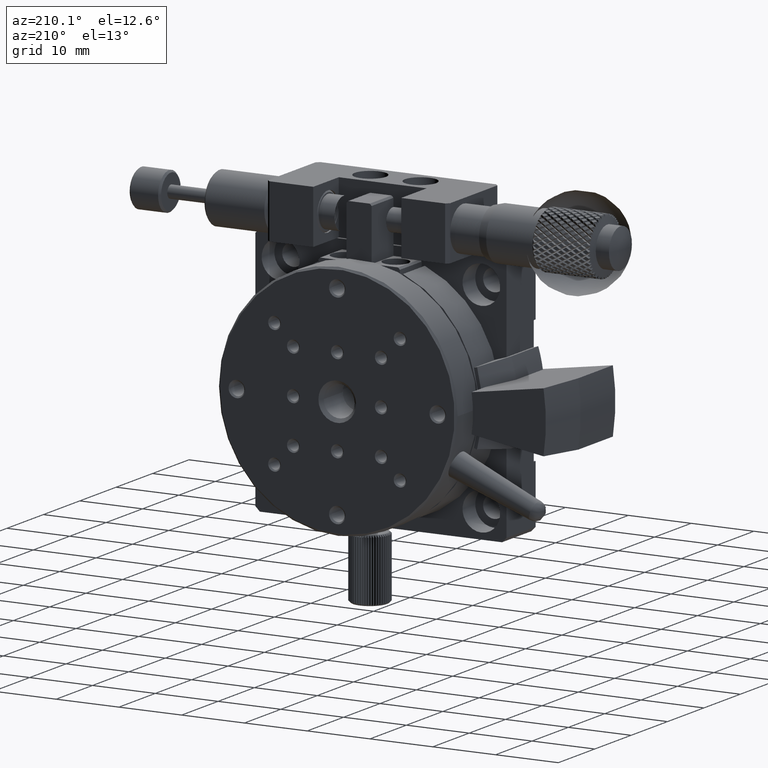
[diagram: clean part render]
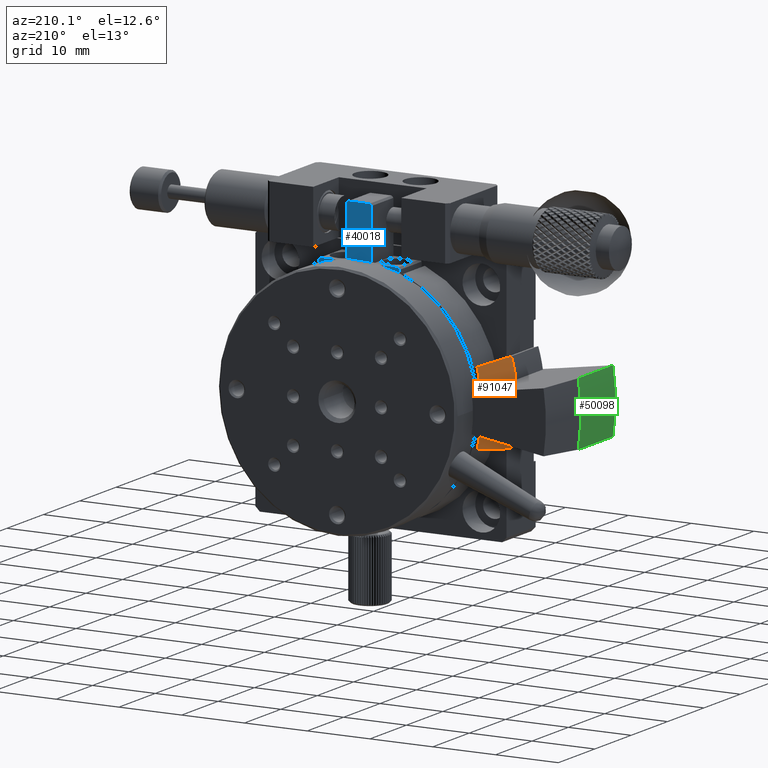
[diagram: same view with three faces highlighted in distinct colors, each labeled with its STEP entity id]
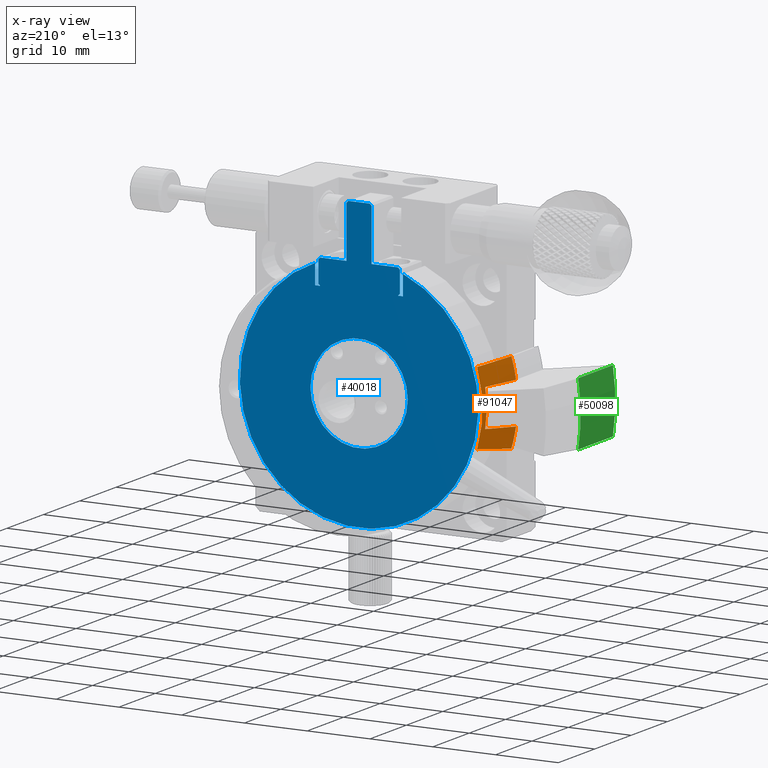
[diagram: x-ray of the same camera — body ghosted, the three highlighted faces saturated]
A machine part, auxiliary view with three faces highlighted in distinct colors.
The next image is the same camera in x-ray (body ghosted, the three faces saturated) — at least one of them is partly hidden behind the body in this view.
Their STEP definitions:

[orange] entity #91047 — the highlighted conical surface has half-angle 23.417 deg.
#232 = CARTESIAN_POINT ( 'NONE',  ( 0.3355955678670327624, 13.27621063538285107, -22.97489616520899247 ) ) ;
#1378 = FACE_OUTER_BOUND ( 'NONE', #73556, .T. ) ;
#1477 = DIRECTION ( 'NONE',  ( -0.000000000000000000, 1.000000000000000000, -0.000000000000000000 ) ) ;
#2318 = VERTEX_POINT ( 'NONE', #49368 ) ;
#2622 = CARTESIAN_POINT ( 'NONE',  ( 0.3355955678670327624, 13.27621063538285107, -22.97489616520899247 ) ) ;
#3247 = DIRECTION ( 'NONE',  ( 0.000000000000000000, 0.000000000000000000, -1.000000000000000000 ) ) ;
#3385 = LINE ( 'NONE', #16946, #22276 ) ;
#7542 = DIRECTION ( 'NONE',  ( -0.000000000000000000, 1.000000000000000000, -0.000000000000000000 ) ) ;
#8204 = CIRCLE ( 'NONE', #60333, 22.00000000000001066 ) ;
#10758 = VERTEX_POINT ( 'NONE', #12938 ) ;
#10899 = CARTESIAN_POINT ( 'NONE',  ( -1.749981070651999815, 8.400000000000011013, -16.69268637316023529 ) ) ;
#12938 = CARTESIAN_POINT ( 'NONE',  ( -1.010000000000012443, 8.400000000000009237, -26.52532757798409335 ) ) ;
#16946 = CARTESIAN_POINT ( 'NONE',  ( 1.264810000000030854, 13.90000000000000036, -14.18118743523213432 ) ) ;
#17187 = ORIENTED_EDGE ( 'NONE', *, *, #62067, .T. ) ;
#17277 = CARTESIAN_POINT ( 'NONE',  ( 20.00000000000000000, 8.400000000000003908, -20.00000000000000000 ) ) ;
#17388 = DIRECTION ( 'NONE',  ( 0.000000000000000000, 0.000000000000000000, -1.000000000000000000 ) ) ;
#18052 = VERTEX_POINT ( 'NONE', #76030 ) ;
#18540 = ORIENTED_EDGE ( 'NONE', *, *, #29663, .T. ) ;
#19627 = EDGE_CURVE ( 'NONE', #2318, #18052, #37887, .T. ) ;
#19982 = VERTEX_POINT ( 'NONE', #61316 ) ;
#22104 = CARTESIAN_POINT ( 'NONE',  ( 1.264809999999991330, 13.90000000000000036, -25.81881256476781061 ) ) ;
#22276 = VECTOR ( 'NONE', #31434, 1000.000000000000114 ) ;
#25502 = CARTESIAN_POINT ( 'NONE',  ( -1.054790448841021133, 10.02540424290428511, -23.19650805988825581 ) ) ;
#25903 = B_SPLINE_CURVE_WITH_KNOTS ( 'NONE', 3,
 ( #10899, #74859, #80925, #74408 ),
 .UNSPECIFIED., .F., .F.,
 ( 4, 4 ),
 ( 7.663399883020687261E-18, 0.005313902656669007921 ),
 .UNSPECIFIED. ) ;
#29120 = LINE ( 'NONE', #22104, #79622 ) ;
#29663 = EDGE_CURVE ( 'NONE', #50483, #66535, #8204, .T. ) ;
#31434 = DIRECTION ( 'NONE',  ( -0.3795362342886302032, -0.9176367646473561068, 0.1178771183459229183 ) ) ;
#34479 = CARTESIAN_POINT ( 'NONE',  ( -1.009999999999992015, 8.400000000000000355, -13.47467242201586046 ) ) ;
#34630 = VERTEX_POINT ( 'NONE', #34784 ) ;
#34784 = CARTESIAN_POINT ( 'NONE',  ( -1.749981070652000703, 8.400000000000003908, -23.30731362683976471 ) ) ;
#36163 = CONICAL_SURFACE ( 'NONE', #71947, 22.00000000000001066, 0.4087037119130503271 ) ;
#36390 = CARTESIAN_POINT ( 'NONE',  ( 0.1775405702563747357, 13.25786069683375956, -21.98326411013932358 ) ) ;
#37827 = B_SPLINE_CURVE_WITH_KNOTS ( 'NONE', 3,
 ( #43363, #36390, #63461, #64842, #79284 ),
 .UNSPECIFIED., .F., .F.,
 ( 4, 1, 4 ),
 ( 3.469446951953614189E-18, 0.002974896165208996968, 0.005949792330417990466 ),
 .UNSPECIFIED. ) ;
#37887 = CIRCLE ( 'NONE', #40885, 19.61799999999999855 ) ;
#40079 = ORIENTED_EDGE ( 'NONE', *, *, #82466, .T. ) ;
#40885 = AXIS2_PLACEMENT_3D ( 'NONE', #56012, #78430, #48097 ) ;
#43363 = CARTESIAN_POINT ( 'NONE',  ( 0.3355955678670327624, 13.27621063538285107, -22.97489616520899247 ) ) ;
#44818 = EDGE_CURVE ( 'NONE', #50483, #19982, #25903, .T. ) ;
#45630 = ORIENTED_EDGE ( 'NONE', *, *, #62608, .T. ) ;
#46049 = AXIS2_PLACEMENT_3D ( 'NONE', #83635, #7542, #70126 ) ;
#48097 = DIRECTION ( 'NONE',  ( 0.000000000000000000, 0.000000000000000000, -1.000000000000000000 ) ) ;
#49368 = CARTESIAN_POINT ( 'NONE',  ( 1.264810000000011980, 13.90000000000000924, -14.18118743523216629 ) ) ;
#50483 = VERTEX_POINT ( 'NONE', #71171 ) ;
#52248 = DIRECTION ( 'NONE',  ( 0.000000000000000000, -1.000000000000000000, 0.000000000000000000 ) ) ;
#56012 = CARTESIAN_POINT ( 'NONE',  ( 20.00000000000000000, 13.90000000000000924, -20.00000000000000000 ) ) ;
#60120 = ORIENTED_EDGE ( 'NONE', *, *, #84541, .T. ) ;
#60333 = AXIS2_PLACEMENT_3D ( 'NONE', #74336, #1477, #17388 ) ;
#61316 = CARTESIAN_POINT ( 'NONE',  ( 0.3355955678670218267, 13.27621063538282975, -17.02510383479100753 ) ) ;
#61794 = ORIENTED_EDGE ( 'NONE', *, *, #19627, .T. ) ;
#62067 = EDGE_CURVE ( 'NONE', #18052, #10758, #29120, .T. ) ;
#62608 = EDGE_CURVE ( 'NONE', #34630, #91346, #79927, .T. ) ;
#63461 = CARTESIAN_POINT ( 'NONE',  ( 0.02245942974362456768, 13.23987230064737375, -20.00000000000000355 ) ) ;
#64842 = CARTESIAN_POINT ( 'NONE',  ( 0.1775405702563766230, 13.25786069683375779, -18.01673588986067287 ) ) ;
#66535 = VERTEX_POINT ( 'NONE', #34479 ) ;
#67055 = CARTESIAN_POINT ( 'NONE',  ( -0.3595984049538981098, 11.65080786213153630, -23.08570226627380251 ) ) ;
#70126 = DIRECTION ( 'NONE',  ( 0.000000000000000000, -1.577021341797096574E-16, -1.000000000000000000 ) ) ;
#71171 = CARTESIAN_POINT ( 'NONE',  ( -1.749981070651999815, 8.400000000000011013, -16.69268637316023529 ) ) ;
#71947 = AXIS2_PLACEMENT_3D ( 'NONE', #17277, #52248, #3247 ) ;
#73556 = EDGE_LOOP ( 'NONE', ( #61794, #17187, #40079, #45630, #60120, #76364, #18540, #91732 ) ) ;
#74336 = CARTESIAN_POINT ( 'NONE',  ( 20.00000000000000000, 8.400000000000003908, -20.00000000000000000 ) ) ;
#74408 = CARTESIAN_POINT ( 'NONE',  ( 0.3355955678670218267, 13.27621063538282975, -17.02510383479100753 ) ) ;
#74859 = CARTESIAN_POINT ( 'NONE',  ( -1.054790448841019357, 10.02540424290428689, -16.80349194011174419 ) ) ;
#76030 = CARTESIAN_POINT ( 'NONE',  ( 1.264810000000003321, 13.90000000000000924, -25.81881256476784259 ) ) ;
#76364 = ORIENTED_EDGE ( 'NONE', *, *, #44818, .F. ) ;
#78430 = DIRECTION ( 'NONE',  ( 0.000000000000000000, -1.000000000000000000, 0.000000000000000000 ) ) ;
#79284 = CARTESIAN_POINT ( 'NONE',  ( 0.3355955678670218267, 13.27621063538282975, -17.02510383479100753 ) ) ;
#79470 = DIRECTION ( 'NONE',  ( -0.3795362342886299811, -0.9176367646473563289, -0.1178771183459221966 ) ) ;
#79622 = VECTOR ( 'NONE', #79470, 1000.000000000000227 ) ;
#79927 = B_SPLINE_CURVE_WITH_KNOTS ( 'NONE', 3,
 ( #81045, #25502, #67055, #2622 ),
 .UNSPECIFIED., .F., .F.,
 ( 4, 4 ),
 ( 5.637851296924623057E-18, 0.005313902656669033941 ),
 .UNSPECIFIED. ) ;
#80925 = CARTESIAN_POINT ( 'NONE',  ( -0.3595984049538986094, 11.65080786213153630, -16.91429773372620105 ) ) ;
#81045 = CARTESIAN_POINT ( 'NONE',  ( -1.749981070652000703, 8.400000000000003908, -23.30731362683976471 ) ) ;
#82466 = EDGE_CURVE ( 'NONE', #10758, #34630, #86274, .T. ) ;
#83635 = CARTESIAN_POINT ( 'NONE',  ( 20.00000000000000000, 8.400000000000011013, -20.00000000000000000 ) ) ;
#84058 = EDGE_CURVE ( 'NONE', #2318, #66535, #3385, .T. ) ;
#84541 = EDGE_CURVE ( 'NONE', #91346, #19982, #37827, .T. ) ;
#86274 = CIRCLE ( 'NONE', #46049, 22.00000000000001066 ) ;
#91047 = ADVANCED_FACE ( 'NONE', ( #1378 ), #36163, .T. ) ;
#91346 = VERTEX_POINT ( 'NONE', #232 ) ;
#91732 = ORIENTED_EDGE ( 'NONE', *, *, #84058, .F. ) ;

[blue] entity #40018 — the highlighted planar face has unit normal (0, 1, 0).
#804 = VERTEX_POINT ( 'NONE', #33940 ) ;
#1255 = ORIENTED_EDGE ( 'NONE', *, *, #80226, .T. ) ;
#1422 = LINE ( 'NONE', #86406, #75638 ) ;
#1927 = CARTESIAN_POINT ( 'NONE',  ( 18.00000000000000355, 14.00000000000000000, -1.500000000000001332 ) ) ;
#1974 = AXIS2_PLACEMENT_3D ( 'NONE', #43617, #34809, #63256 ) ;
#3435 = CARTESIAN_POINT ( 'NONE',  ( 13.79999999999998117, 14.00000000000000000, -1.500000000000001332 ) ) ;
#4281 = ORIENTED_EDGE ( 'NONE', *, *, #23924, .T. ) ;
#4452 = EDGE_CURVE ( 'NONE', #51244, #34589, #91294, .T. ) ;
#4501 = VERTEX_POINT ( 'NONE', #36682 ) ;
#4859 = DIRECTION ( 'NONE',  ( 0.000000000000000000, -1.000000000000000000, 0.000000000000000000 ) ) ;
#6478 = CARTESIAN_POINT ( 'NONE',  ( 13.79999999999997939, 14.00000000000000000, -1.499999999999997780 ) ) ;
#9075 = LINE ( 'NONE', #56698, #54358 ) ;
#9979 = LINE ( 'NONE', #3435, #63183 ) ;
#10840 = CARTESIAN_POINT ( 'NONE',  ( 21.69999999999998863, 14.00000000000000000, 6.999999999999999112 ) ) ;
#10964 = CARTESIAN_POINT ( 'NONE',  ( 13.00000000000000178, 14.00000000000000000, -2.336478267344305859 ) ) ;
#12189 = LINE ( 'NONE', #40678, #18315 ) ;
#13212 = CARTESIAN_POINT ( 'NONE',  ( 20.00000000000000000, 14.00000000000000000, -5.500000000000000000 ) ) ;
#13611 = ORIENTED_EDGE ( 'NONE', *, *, #82944, .F. ) ;
#13828 = LINE ( 'NONE', #48359, #60821 ) ;
#13870 = PLANE ( 'NONE',  #68027 ) ;
#14225 = LINE ( 'NONE', #51489, #47045 ) ;
#15668 = ORIENTED_EDGE ( 'NONE', *, *, #91532, .T. ) ;
#16121 = LINE ( 'NONE', #73531, #16820 ) ;
#16462 = CARTESIAN_POINT ( 'NONE',  ( 26.50000000000000355, 14.00000000000000000, -5.200000000000000178 ) ) ;
#16819 = ORIENTED_EDGE ( 'NONE', *, *, #4452, .T. ) ;
#16820 = VECTOR ( 'NONE', #87042, 1000.000000000000000 ) ;
#17447 = CARTESIAN_POINT ( 'NONE',  ( 26.50000000000000000, 14.00000000000000000, -1.799999999999999600 ) ) ;
#18139 = CARTESIAN_POINT ( 'NONE',  ( 21.69999999999998863, 14.00000000000000000, 6.999999999999999112 ) ) ;
#18315 = VECTOR ( 'NONE', #33718, 1000.000000000000000 ) ;
#18847 = ORIENTED_EDGE ( 'NONE', *, *, #26708, .T. ) ;
#19077 = EDGE_CURVE ( 'NONE', #63182, #20416, #75145, .T. ) ;
#19219 = AXIS2_PLACEMENT_3D ( 'NONE', #67926, #4859, #82362 ) ;
#19442 = VECTOR ( 'NONE', #34854, 1000.000000000000000 ) ;
#19728 = VECTOR ( 'NONE', #67038, 1000.000000000000000 ) ;
#19864 = ORIENTED_EDGE ( 'NONE', *, *, #19077, .F. ) ;
#20416 = VERTEX_POINT ( 'NONE', #82505 ) ;
#20734 = VECTOR ( 'NONE', #24589, 1000.000000000000000 ) ;
#20749 = EDGE_CURVE ( 'NONE', #69765, #54430, #24577, .T. ) ;
#22507 = DIRECTION ( 'NONE',  ( -0.000000000000000000, -0.000000000000000000, -1.000000000000000000 ) ) ;
#22913 = VERTEX_POINT ( 'NONE', #25631 ) ;
#23414 = CARTESIAN_POINT ( 'NONE',  ( 13.79999999999997939, 14.00000000000000178, -5.500000000000000000 ) ) ;
#23494 = EDGE_CURVE ( 'NONE', #55798, #22913, #12189, .T. ) ;
#23924 = EDGE_CURVE ( 'NONE', #34589, #87161, #52124, .T. ) ;
#24577 = LINE ( 'NONE', #61393, #19728 ) ;
#24589 = DIRECTION ( 'NONE',  ( -0.000000000000000000, -0.000000000000000000, 1.000000000000000000 ) ) ;
#25631 = CARTESIAN_POINT ( 'NONE',  ( 26.19999999999998863, 14.00000000000000000, -1.499999999999997780 ) ) ;
#26708 = EDGE_CURVE ( 'NONE', #87161, #31501, #9979, .T. ) ;
#26934 = DIRECTION ( 'NONE',  ( 1.000000000000000000, -0.000000000000000000, -0.000000000000000000 ) ) ;
#27387 = CARTESIAN_POINT ( 'NONE',  ( 13.49999999999996980, 14.00000000000000000, -1.799999999999999600 ) ) ;
#27851 = ORIENTED_EDGE ( 'NONE', *, *, #37194, .T. ) ;
#31501 = VERTEX_POINT ( 'NONE', #1927 ) ;
#31709 = VECTOR ( 'NONE', #74241, 1000.000000000000000 ) ;
#32792 = ORIENTED_EDGE ( 'NONE', *, *, #23494, .T. ) ;
#33169 = VECTOR ( 'NONE', #61239, 999.9999999999998863 ) ;
#33718 = DIRECTION ( 'NONE',  ( 1.000000000000000000, -0.000000000000000000, -0.000000000000000000 ) ) ;
#33872 = CARTESIAN_POINT ( 'NONE',  ( 13.49999999999996803, 14.00000000000000000, -1.800000000000002931 ) ) ;
#33881 = EDGE_CURVE ( 'NONE', #75892, #4501, #77153, .T. ) ;
#33940 = CARTESIAN_POINT ( 'NONE',  ( 22.00000000000000000, 14.00000000000000000, 6.699999999999997513 ) ) ;
#34441 = CARTESIAN_POINT ( 'NONE',  ( 26.19999999999999218, 14.00000000000000178, -5.500000000000000000 ) ) ;
#34589 = VERTEX_POINT ( 'NONE', #33872 ) ;
#34809 = DIRECTION ( 'NONE',  ( 0.000000000000000000, -1.000000000000000000, 0.000000000000000000 ) ) ;
#34854 = DIRECTION ( 'NONE',  ( -0.000000000000000000, -0.000000000000000000, 1.000000000000000000 ) ) ;
#35316 = CARTESIAN_POINT ( 'NONE',  ( 13.49999999999996980, 14.00000000000000000, -5.200000000000000178 ) ) ;
#36682 = CARTESIAN_POINT ( 'NONE',  ( 27.00000000000000000, 14.00000000000000178, -5.500000000000001776 ) ) ;
#37188 = DIRECTION ( 'NONE',  ( -1.000000000000000000, 0.000000000000000000, 0.000000000000000000 ) ) ;
#37194 = EDGE_CURVE ( 'NONE', #50188, #69765, #46143, .T. ) ;
#37388 = LINE ( 'NONE', #65847, #31709 ) ;
#37809 = ORIENTED_EDGE ( 'NONE', *, *, #33881, .T. ) ;
#40018 = ADVANCED_FACE ( 'NONE', ( #44172, #65664 ), #13870, .T. ) ;
#40476 = CARTESIAN_POINT ( 'NONE',  ( 27.75000000000000000, 14.00000000000000000, -20.00000000000000000 ) ) ;
#40678 = CARTESIAN_POINT ( 'NONE',  ( 22.00000000000000000, 14.00000000000000000, -1.500000000000001332 ) ) ;
#41397 = LINE ( 'NONE', #62840, #42989 ) ;
#41716 = DIRECTION ( 'NONE',  ( 1.000000000000000000, -0.000000000000000000, -0.000000000000000000 ) ) ;
#42989 = VECTOR ( 'NONE', #26934, 1000.000000000000000 ) ;
#43617 = CARTESIAN_POINT ( 'NONE',  ( 20.00000000000000000, 14.00000000000000000, -20.00000000000000000 ) ) ;
#44172 = FACE_OUTER_BOUND ( 'NONE', #84532, .T. ) ;
#44414 = DIRECTION ( 'NONE',  ( 0.7071067811865615615, 0.000000000000000000, 0.7071067811865335839 ) ) ;
#44516 = DIRECTION ( 'NONE',  ( 0.7071067811865617836, 0.000000000000000000, -0.7071067811865332509 ) ) ;
#46143 = LINE ( 'NONE', #68085, #70912 ) ;
#47045 = VECTOR ( 'NONE', #44516, 1000.000000000000114 ) ;
#48359 = CARTESIAN_POINT ( 'NONE',  ( 26.50000000000000355, 14.00000000000000000, -1.799999999999999600 ) ) ;
#49712 = DIRECTION ( 'NONE',  ( -0.000000000000000000, -0.000000000000000000, -1.000000000000000000 ) ) ;
#50188 = VERTEX_POINT ( 'NONE', #52732 ) ;
#51145 = DIRECTION ( 'NONE',  ( 0.000000000000000000, 1.000000000000000000, 0.000000000000000000 ) ) ;
#51244 = VERTEX_POINT ( 'NONE', #52638 ) ;
#51489 = CARTESIAN_POINT ( 'NONE',  ( 26.19999999999999218, 14.00000000000000000, -1.500000000000001332 ) ) ;
#51722 = CARTESIAN_POINT ( 'NONE',  ( 26.50000000000000355, 14.00000000000000000, -5.200000000000000178 ) ) ;
#52124 = LINE ( 'NONE', #27387, #61641 ) ;
#52638 = CARTESIAN_POINT ( 'NONE',  ( 13.49999999999997158, 14.00000000000000000, -5.199999999999996625 ) ) ;
#52732 = CARTESIAN_POINT ( 'NONE',  ( 18.00000000000000355, 14.00000000000000000, 6.700000000000001066 ) ) ;
#54358 = VECTOR ( 'NONE', #49712, 1000.000000000000000 ) ;
#54430 = VERTEX_POINT ( 'NONE', #18139 ) ;
#54848 = VERTEX_POINT ( 'NONE', #23414 ) ;
#55798 = VERTEX_POINT ( 'NONE', #83077 ) ;
#56698 = CARTESIAN_POINT ( 'NONE',  ( 27.00000000000000000, 14.00000000000000000, 18.11650485436889824 ) ) ;
#57355 = LINE ( 'NONE', #51722, #90548 ) ;
#58911 = VERTEX_POINT ( 'NONE', #17447 ) ;
#60011 = LINE ( 'NONE', #73141, #20734 ) ;
#60821 = VECTOR ( 'NONE', #85211, 1000.000000000000000 ) ;
#61239 = DIRECTION ( 'NONE',  ( 0.7071067811865615615, 0.000000000000000000, -0.7071067811865335839 ) ) ;
#61292 = DIRECTION ( 'NONE',  ( 1.000000000000000000, -0.000000000000000000, -0.000000000000000000 ) ) ;
#61303 = VERTEX_POINT ( 'NONE', #72083 ) ;
#61393 = CARTESIAN_POINT ( 'NONE',  ( 18.30000000000001137, 14.00000000000000000, 6.999999999999999112 ) ) ;
#61641 = VECTOR ( 'NONE', #75003, 1000.000000000000114 ) ;
#62431 = CIRCLE ( 'NONE', #19219, 7.750000000000000000 ) ;
#62742 = EDGE_CURVE ( 'NONE', #20416, #4501, #9075, .T. ) ;
#62840 = CARTESIAN_POINT ( 'NONE',  ( 20.00000000000000000, 14.00000000000000000, -5.500000000000000000 ) ) ;
#63182 = VERTEX_POINT ( 'NONE', #10964 ) ;
#63183 = VECTOR ( 'NONE', #61292, 1000.000000000000000 ) ;
#63256 = DIRECTION ( 'NONE',  ( 1.000000000000000000, 0.000000000000000000, 0.000000000000000000 ) ) ;
#65002 = ORIENTED_EDGE ( 'NONE', *, *, #76399, .T. ) ;
#65664 = FACE_BOUND ( 'NONE', #88482, .T. ) ;
#65847 = CARTESIAN_POINT ( 'NONE',  ( 18.00000000000000355, 14.00000000000000000, -1.500000000000001332 ) ) ;
#65913 = EDGE_CURVE ( 'NONE', #22913, #58911, #14225, .T. ) ;
#67038 = DIRECTION ( 'NONE',  ( 1.000000000000000000, -0.000000000000000000, -0.000000000000000000 ) ) ;
#67796 = LINE ( 'NONE', #10840, #33169 ) ;
#67926 = CARTESIAN_POINT ( 'NONE',  ( 20.00000000000000000, 14.00000000000000000, -20.00000000000000000 ) ) ;
#68027 = AXIS2_PLACEMENT_3D ( 'NONE', #72213, #51145, #37188 ) ;
#68085 = CARTESIAN_POINT ( 'NONE',  ( 18.00000000000000355, 14.00000000000000000, 6.700000000000001066 ) ) ;
#69116 = CARTESIAN_POINT ( 'NONE',  ( 18.30000000000000782, 14.00000000000000000, 7.000000000000002665 ) ) ;
#69250 = VECTOR ( 'NONE', #41716, 1000.000000000000000 ) ;
#69765 = VERTEX_POINT ( 'NONE', #69116 ) ;
#70912 = VECTOR ( 'NONE', #44414, 999.9999999999998863 ) ;
#71612 = ORIENTED_EDGE ( 'NONE', *, *, #87020, .T. ) ;
#71804 = ORIENTED_EDGE ( 'NONE', *, *, #82071, .T. ) ;
#72083 = CARTESIAN_POINT ( 'NONE',  ( 13.00000000000000178, 14.00000000000000178, -5.500000000000000000 ) ) ;
#72213 = CARTESIAN_POINT ( 'NONE',  ( 20.00000000000000000, 14.00000000000000000, -20.00000000000000000 ) ) ;
#73141 = CARTESIAN_POINT ( 'NONE',  ( 13.00000000000000178, 14.00000000000000000, -5.500000000000000000 ) ) ;
#73531 = CARTESIAN_POINT ( 'NONE',  ( 13.79999999999998117, 14.00000000000000000, -5.500000000000000000 ) ) ;
#74241 = DIRECTION ( 'NONE',  ( -0.000000000000000000, -0.000000000000000000, 1.000000000000000000 ) ) ;
#75003 = DIRECTION ( 'NONE',  ( 0.7071067811865617836, 0.000000000000000000, 0.7071067811865332509 ) ) ;
#75145 = CIRCLE ( 'NONE', #1974, 19.00000000000000000 ) ;
#75638 = VECTOR ( 'NONE', #22507, 1000.000000000000000 ) ;
#75892 = VERTEX_POINT ( 'NONE', #34441 ) ;
#76399 = EDGE_CURVE ( 'NONE', #804, #55798, #1422, .T. ) ;
#77153 = LINE ( 'NONE', #13212, #69250 ) ;
#77536 = EDGE_CURVE ( 'NONE', #86681, #75892, #57355, .T. ) ;
#79640 = ORIENTED_EDGE ( 'NONE', *, *, #20749, .T. ) ;
#79990 = ORIENTED_EDGE ( 'NONE', *, *, #65913, .T. ) ;
#80222 = EDGE_CURVE ( 'NONE', #58911, #86681, #13828, .T. ) ;
#80226 = EDGE_CURVE ( 'NONE', #61303, #54848, #41397, .T. ) ;
#82071 = EDGE_CURVE ( 'NONE', #92223, #92223, #62431, .T. ) ;
#82362 = DIRECTION ( 'NONE',  ( 1.000000000000000000, 0.000000000000000000, 0.000000000000000000 ) ) ;
#82505 = CARTESIAN_POINT ( 'NONE',  ( 27.00000000000000000, 14.00000000000000000, -2.336478267344305859 ) ) ;
#82944 = EDGE_CURVE ( 'NONE', #61303, #63182, #60011, .T. ) ;
#83077 = CARTESIAN_POINT ( 'NONE',  ( 22.00000000000000000, 14.00000000000000000, -1.500000000000001332 ) ) ;
#83143 = ORIENTED_EDGE ( 'NONE', *, *, #80222, .T. ) ;
#84289 = ORIENTED_EDGE ( 'NONE', *, *, #77536, .T. ) ;
#84532 = EDGE_LOOP ( 'NONE', ( #37809, #85900, #19864, #13611, #1255, #15668, #16819, #4281, #18847, #71612, #27851, #79640, #86294, #65002, #32792, #79990, #83143, #84289 ) ) ;
#85211 = DIRECTION ( 'NONE',  ( -0.000000000000000000, -0.000000000000000000, -1.000000000000000000 ) ) ;
#85900 = ORIENTED_EDGE ( 'NONE', *, *, #62742, .F. ) ;
#86294 = ORIENTED_EDGE ( 'NONE', *, *, #90209, .T. ) ;
#86406 = CARTESIAN_POINT ( 'NONE',  ( 22.00000000000000000, 14.00000000000000000, 6.700000000000001066 ) ) ;
#86681 = VERTEX_POINT ( 'NONE', #16462 ) ;
#87020 = EDGE_CURVE ( 'NONE', #31501, #50188, #37388, .T. ) ;
#87042 = DIRECTION ( 'NONE',  ( -0.7071067811865597852, 0.000000000000000000, 0.7071067811865352493 ) ) ;
#87161 = VERTEX_POINT ( 'NONE', #6478 ) ;
#88482 = EDGE_LOOP ( 'NONE', ( #71804 ) ) ;
#88583 = DIRECTION ( 'NONE',  ( -0.7071067811865597852, 0.000000000000000000, -0.7071067811865352493 ) ) ;
#90209 = EDGE_CURVE ( 'NONE', #54430, #804, #67796, .T. ) ;
#90548 = VECTOR ( 'NONE', #88583, 1000.000000000000000 ) ;
#91294 = LINE ( 'NONE', #35316, #19442 ) ;
#91532 = EDGE_CURVE ( 'NONE', #54848, #51244, #16121, .T. ) ;
#92223 = VERTEX_POINT ( 'NONE', #40476 ) ;

[green] entity #50098 — the highlighted cylindrical surface (partial cylindrical patch) has radius 32 mm, axis along (0, 1, 0).
#2440 = CARTESIAN_POINT ( 'NONE',  ( -12.60110803324100104, 10.00000000000000178, -25.03686123209991266 ) ) ;
#6820 = VECTOR ( 'NONE', #69368, 1000.000000000000000 ) ;
#9684 = CARTESIAN_POINT ( 'NONE',  ( -12.60110803324100104, 0.000000000000000000, -14.96313876790009800 ) ) ;
#9860 = DIRECTION ( 'NONE',  ( 0.000000000000000000, 0.000000000000000000, 1.000000000000000000 ) ) ;
#10608 = VERTEX_POINT ( 'NONE', #27550 ) ;
#13156 = DIRECTION ( 'NONE',  ( 0.000000000000000000, 0.000000000000000000, 1.000000000000000000 ) ) ;
#16698 = VECTOR ( 'NONE', #79718, 1000.000000000000000 ) ;
#17287 = AXIS2_PLACEMENT_3D ( 'NONE', #70855, #20912, #27933 ) ;
#17960 = EDGE_LOOP ( 'NONE', ( #42024, #60377, #47762, #35214 ) ) ;
#18753 = CIRCLE ( 'NONE', #17287, 32.00000000000000000 ) ;
#20912 = DIRECTION ( 'NONE',  ( 0.000000000000000000, 1.000000000000000000, 0.000000000000000000 ) ) ;
#21303 = EDGE_CURVE ( 'NONE', #71707, #74909, #68973, .T. ) ;
#23453 = CARTESIAN_POINT ( 'NONE',  ( 19.00000000000000000, 10.00000000000000178, -20.00000000000000000 ) ) ;
#25600 = CARTESIAN_POINT ( 'NONE',  ( -12.60110803324099926, 10.00000000000001599, -14.96313876790009800 ) ) ;
#27550 = CARTESIAN_POINT ( 'NONE',  ( -12.60110803324100281, 0.5000000000000004441, -14.96313876790009978 ) ) ;
#27933 = DIRECTION ( 'NONE',  ( 0.000000000000000000, 0.000000000000000000, 1.000000000000000000 ) ) ;
#28952 = VERTEX_POINT ( 'NONE', #41034 ) ;
#35214 = ORIENTED_EDGE ( 'NONE', *, *, #89588, .F. ) ;
#40882 = CARTESIAN_POINT ( 'NONE',  ( -12.60110803324100281, 50.00000000000000000, -25.03686123209991266 ) ) ;
#41034 = CARTESIAN_POINT ( 'NONE',  ( -12.60110803324100104, 0.5000000000000004441, -25.03686123209990555 ) ) ;
#42024 = ORIENTED_EDGE ( 'NONE', *, *, #21303, .T. ) ;
#47703 = AXIS2_PLACEMENT_3D ( 'NONE', #48625, #77095, #13156 ) ;
#47762 = ORIENTED_EDGE ( 'NONE', *, *, #66538, .T. ) ;
#48625 = CARTESIAN_POINT ( 'NONE',  ( 19.00000000000000000, 50.00000000000000000, -20.00000000000000000 ) ) ;
#50098 = ADVANCED_FACE ( 'NONE', ( #55604 ), #84094, .T. ) ;
#55604 = FACE_OUTER_BOUND ( 'NONE', #17960, .T. ) ;
#60377 = ORIENTED_EDGE ( 'NONE', *, *, #66954, .T. ) ;
#63269 = LINE ( 'NONE', #40882, #6820 ) ;
#66538 = EDGE_CURVE ( 'NONE', #28952, #10608, #18753, .T. ) ;
#66954 = EDGE_CURVE ( 'NONE', #74909, #28952, #63269, .T. ) ;
#68973 = CIRCLE ( 'NONE', #83824, 32.00000000000000000 ) ;
#69368 = DIRECTION ( 'NONE',  ( -0.000000000000000000, -1.000000000000000000, -0.000000000000000000 ) ) ;
#70855 = CARTESIAN_POINT ( 'NONE',  ( 19.00000000000000000, 0.5000000000000004441, -20.00000000000000000 ) ) ;
#71707 = VERTEX_POINT ( 'NONE', #25600 ) ;
#74909 = VERTEX_POINT ( 'NONE', #2440 ) ;
#77095 = DIRECTION ( 'NONE',  ( 0.000000000000000000, 1.000000000000000000, 0.000000000000000000 ) ) ;
#79718 = DIRECTION ( 'NONE',  ( 0.000000000000000000, -1.000000000000000000, -0.000000000000000000 ) ) ;
#81737 = DIRECTION ( 'NONE',  ( -0.000000000000000000, -1.000000000000000000, -0.000000000000000000 ) ) ;
#83824 = AXIS2_PLACEMENT_3D ( 'NONE', #23453, #81737, #9860 ) ;
#84094 = CYLINDRICAL_SURFACE ( 'NONE', #47703, 32.00000000000000000 ) ;
#88548 = LINE ( 'NONE', #9684, #16698 ) ;
#89588 = EDGE_CURVE ( 'NONE', #71707, #10608, #88548, .T. ) ;